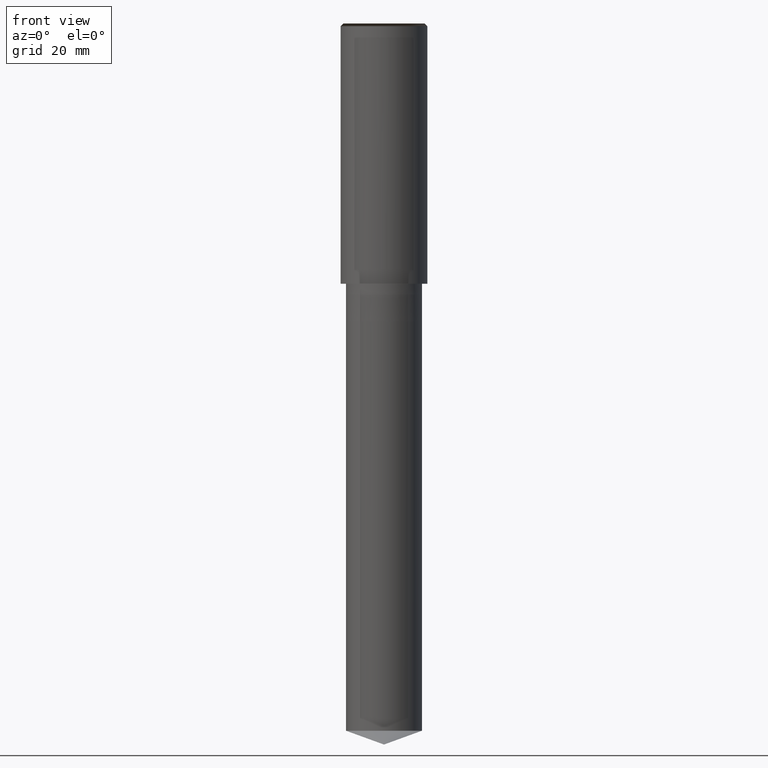
[diagram: clean part render]
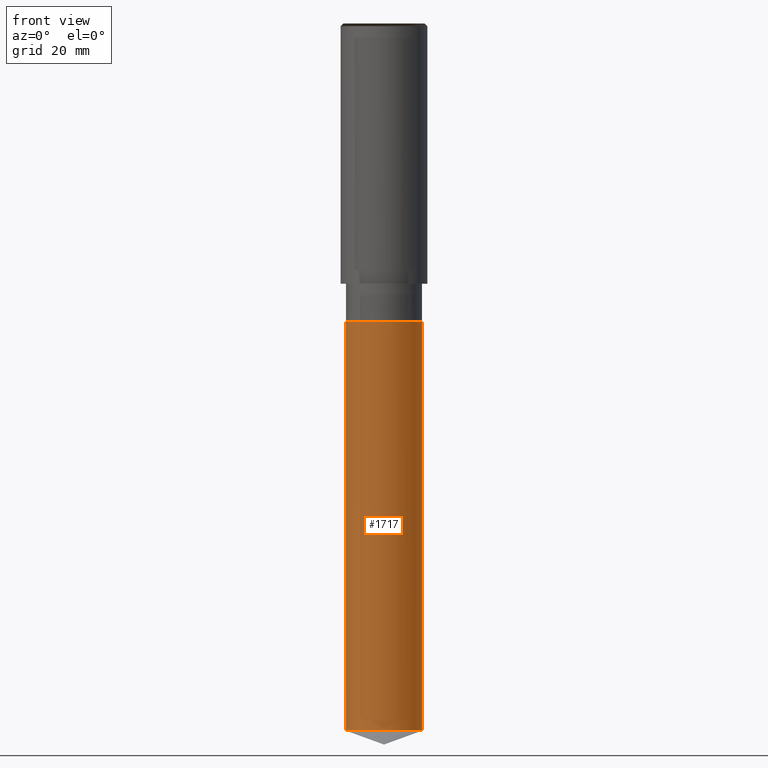
[diagram: same view with one face highlighted and labeled with its STEP entity id]
A machine part, front view. The second image highlights one B-rep face of the part: STEP entity #1717.
In plain terms, the highlighted face is a freeform B-spline surface patch.
Its self-contained STEP definition (entity closure, byte-faithful):
#1567=CARTESIAN_POINT('',(7.0,0.0,-82.452208360137));
#1571=CARTESIAN_POINT('',(-7.0,0.0,-82.452208360137));
#1572=CARTESIAN_POINT('',(7.0,0.0,-7.0));
#1576=CARTESIAN_POINT('',(-7.0,0.0,-7.0));
#1578=CARTESIAN_POINT('',(-7.0,-7.0,-82.452208360137));
#1579=CARTESIAN_POINT('',(0.0,-7.0,-82.452208360137));
#1580=CARTESIAN_POINT('',(7.0,-7.0,-82.452208360137));
#1581=CARTESIAN_POINT('',(-7.0,-7.0,-7.0));
#1582=CARTESIAN_POINT('',(0.0,-7.0,-7.0));
#1583=CARTESIAN_POINT('',(7.0,-7.0,-7.0));
#1698=(
BOUNDED_SURFACE()
B_SPLINE_SURFACE(1,2,(
(#1571,#1578,#1579,#1580,#1567),
(#1576,#1581,#1582,#1583,#1572)
), .UNSPECIFIED.,.F.,.F.,.F.)
B_SPLINE_SURFACE_WITH_KNOTS((2,2),(3,2,3),(
0.0,1.0),(
0.0,0.5,1.0), .UNSPECIFIED.)
GEOMETRIC_REPRESENTATION_ITEM()
RATIONAL_B_SPLINE_SURFACE(((1.0,0.707106781187,1.0,0.707106781187,1.0),
(1.0,0.707106781187,1.0,0.707106781187,1.0)
))
REPRESENTATION_ITEM('')
SURFACE()
);
#1699=(
BOUNDED_CURVE()
B_SPLINE_CURVE(2,(#1567,#1580,#1579,#1578,#1571),.UNSPECIFIED.,.F.,.F.)
B_SPLINE_CURVE_WITH_KNOTS((3,2,3),
(0.0,0.5,1.0),.UNSPECIFIED.)
CURVE()
GEOMETRIC_REPRESENTATION_ITEM()
RATIONAL_B_SPLINE_CURVE((1.0,0.707106781187,1.0,0.707106781187,1.0))
REPRESENTATION_ITEM('')
);
#1700=(
BOUNDED_CURVE()
B_SPLINE_CURVE(1,(#1571,#1576),.UNSPECIFIED.,.F.,.F.)
B_SPLINE_CURVE_WITH_KNOTS((2,2),
(0.0,1.0),.UNSPECIFIED.)
CURVE()
GEOMETRIC_REPRESENTATION_ITEM()
RATIONAL_B_SPLINE_CURVE((1.0,1.0))
REPRESENTATION_ITEM('')
);
#1701=(
BOUNDED_CURVE()
B_SPLINE_CURVE(2,(#1576,#1581,#1582,#1583,#1572),.UNSPECIFIED.,.F.,.F.)
B_SPLINE_CURVE_WITH_KNOTS((3,2,3),
(0.0,0.5,1.0),.UNSPECIFIED.)
CURVE()
GEOMETRIC_REPRESENTATION_ITEM()
RATIONAL_B_SPLINE_CURVE((1.0,0.707106781187,1.0,0.707106781187,1.0))
REPRESENTATION_ITEM('')
);
#1702=(
BOUNDED_CURVE()
B_SPLINE_CURVE(1,(#1572,#1567),.UNSPECIFIED.,.F.,.F.)
B_SPLINE_CURVE_WITH_KNOTS((2,2),
(0.0,1.0),.UNSPECIFIED.)
CURVE()
GEOMETRIC_REPRESENTATION_ITEM()
RATIONAL_B_SPLINE_CURVE((1.0,1.0))
REPRESENTATION_ITEM('')
);
#1703=VERTEX_POINT('',#1567);
#1704=VERTEX_POINT('',#1571);
#1705=VERTEX_POINT('',#1572);
#1706=VERTEX_POINT('',#1576);
#1707=EDGE_CURVE('',#1703,#1704,#1699,.T.);
#1708=EDGE_CURVE('',#1704,#1706,#1700,.T.);
#1709=EDGE_CURVE('',#1706,#1705,#1701,.T.);
#1710=EDGE_CURVE('',#1705,#1703,#1702,.T.);
#1711=ORIENTED_EDGE('',*,*,#1707,.T.);
#1712=ORIENTED_EDGE('',*,*,#1708,.T.);
#1713=ORIENTED_EDGE('',*,*,#1709,.T.);
#1714=ORIENTED_EDGE('',*,*,#1710,.T.);
#1715=EDGE_LOOP('',(#1711,#1712,#1713,#1714));
#1716=FACE_OUTER_BOUND('',#1715,.T.);
#1717=ADVANCED_FACE('',(#1716),#1698,.T.);